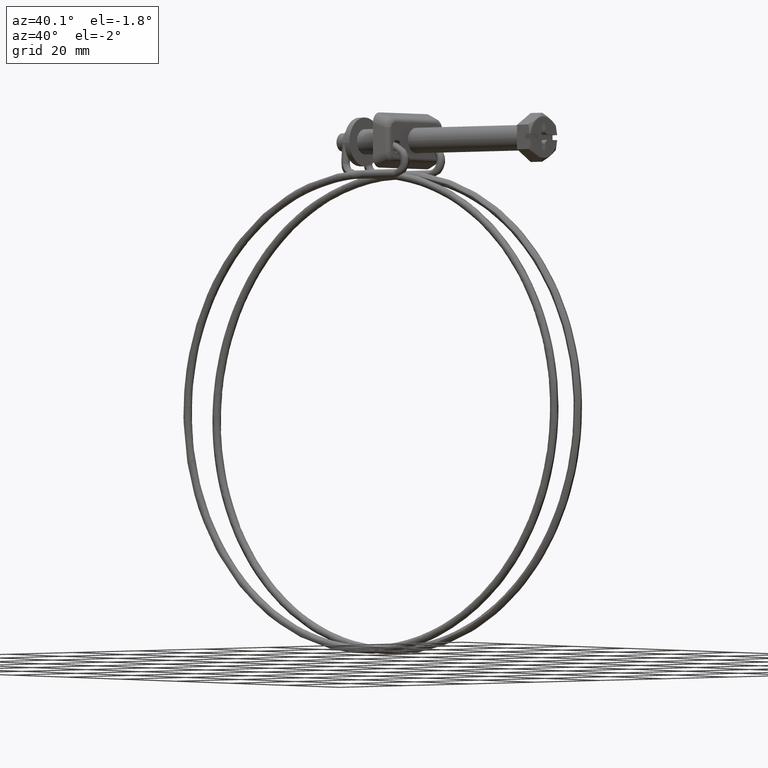
[diagram: clean part render]
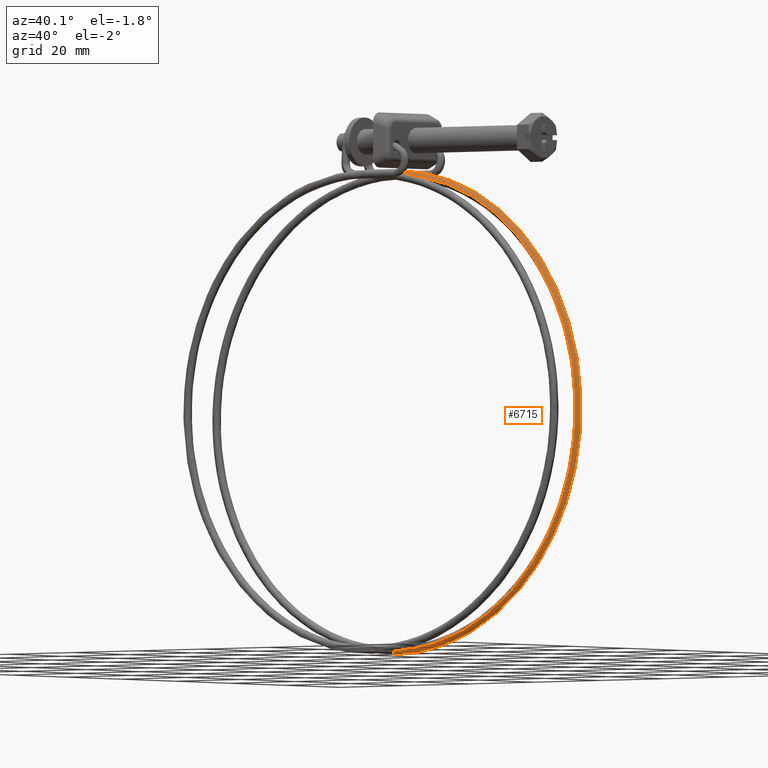
[diagram: same view with one face highlighted and labeled with its STEP entity id]
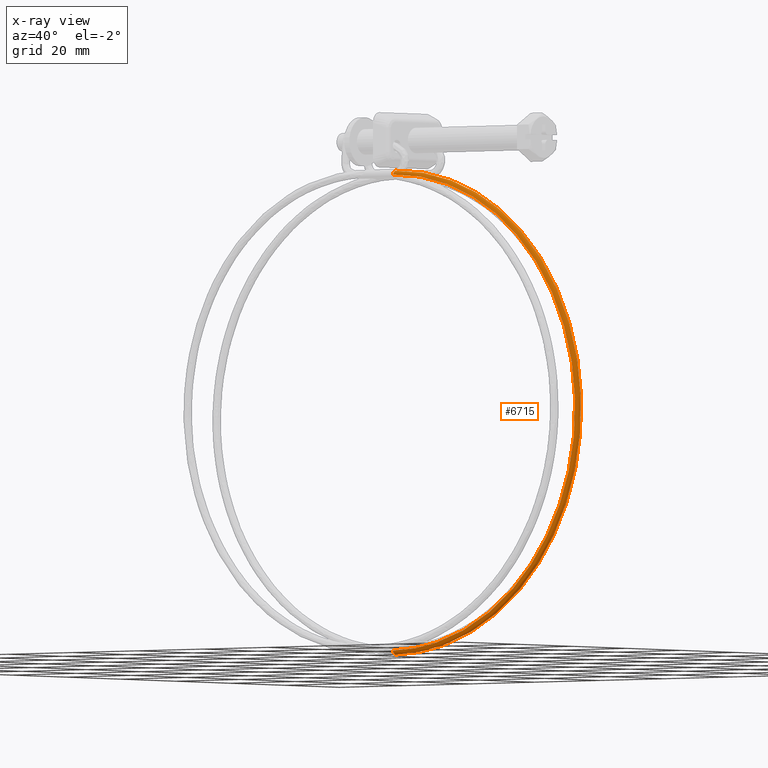
[diagram: x-ray of the same camera — body ghosted, the highlighted face saturated]
A machine part, auxiliary view. The second image highlights one B-rep face of the part: STEP entity #6715.
The next image is the same camera in x-ray: the body ghosted, the highlighted face saturated — about 0% of this face is hidden behind the body in this view.
In plain terms, the highlighted face is a freeform B-spline surface patch.
Its self-contained STEP definition (entity closure, byte-faithful):
#4757=CARTESIAN_POINT('',(-45.149995047848009,4.312567983723296,-6.850080010482468));
#4758=VERTEX_POINT('',#4757);
#4869=CARTESIAN_POINT('',(-45.149999999999487,3.302437946023353,-7.780267861726598));
#4870=VERTEX_POINT('',#4869);
#4894=CARTESIAN_POINT('',(-45.149999999999487,3.302437946023353,-7.780267861726598));
#4895=CARTESIAN_POINT('',(-45.149999887981103,3.305665785399472,-7.738186012179924));
#4896=CARTESIAN_POINT('',(-45.149999769360569,3.311570233933336,-7.696290172831220));
#4897=CARTESIAN_POINT('',(-45.149999452208732,3.333373918543057,-7.590727070602215));
#4898=CARTESIAN_POINT('',(-45.149999245691802,3.352988562713096,-7.527797280406175));
#4899=CARTESIAN_POINT('',(-45.149998813237673,3.404179191938013,-7.406868642005023));
#4900=CARTESIAN_POINT('',(-45.149998587311138,3.435753911203701,-7.348872783998793));
#4901=CARTESIAN_POINT('',(-45.149998124719282,3.509651853348891,-7.240041057395966));
#4902=CARTESIAN_POINT('',(-45.149997888065393,3.551973248956153,-7.189207879878272));
#4903=CARTESIAN_POINT('',(-45.149997413113027,3.645738647547429,-7.096655407293596));
#4904=CARTESIAN_POINT('',(-45.149997174826282,3.697180331997190,-7.054938400768875));
#4905=CARTESIAN_POINT('',(-45.149996705765503,3.807209835350924,-6.982221921819744));
#4906=CARTESIAN_POINT('',(-45.149996475003093,3.865794933558606,-6.951224247453576));
#4907=CARTESIAN_POINT('',(-45.149996029859672,3.987860169566173,-6.901138215646140));
#4908=CARTESIAN_POINT('',(-45.149995815489660,4.051337289062560,-6.882051096680708));
#4909=CARTESIAN_POINT('',(-45.149995411370199,4.180747359159162,-6.856520290128752));
#4910=CARTESIAN_POINT('',(-45.149995221630718,4.246677109840382,-6.850077233841728));
#4911=CARTESIAN_POINT('',(-45.149995047848009,4.312567983723296,-6.850080010482468));
#4912=B_SPLINE_CURVE_WITH_KNOTS('',3,(#4894,#4895,#4896,#4897,#4898,#4899,#4900,#4901,#4902,#4903,#4904,#4905,#4906,#4907,#4908,#4909,#4910,#4911),.UNSPECIFIED.,.F.,.U.,(4,2,2,2,2,2,2,2,4),(0.761107417883291,0.781249999999999,0.812499999999999,0.843749999999999,0.874999999999999,0.906249999999999,0.937500000000000,0.968750000000000,1.0),.UNSPECIFIED.);
#4913=EDGE_CURVE('',#4870,#4758,#4912,.T.);
#6636=CARTESIAN_POINT('',(-53.043581710672584,3.299495142745857,-8.381182157564419));
#6637=CARTESIAN_POINT('',(11.694937367910224,3.299495142745854,0.831539527141473));
#6638=CARTESIAN_POINT('',(10.873234604270177,3.299495142745857,-64.554046788927522));
#6639=CARTESIAN_POINT('',(10.070984297930464,3.299495142745855,-128.391737220800820));
#6640=CARTESIAN_POINT('',(-53.122151795939374,3.299495142745855,-119.307582012342210));
#6641=CARTESIAN_POINT('',(-53.046521611377898,3.300953821435807,-8.360523244334013));
#6642=CARTESIAN_POINT('',(11.716108805362451,3.300953821435805,0.855629644098081));
#6643=CARTESIAN_POINT('',(10.894100005169802,3.300953821435807,-64.554309005090872));
#6644=CARTESIAN_POINT('',(10.091550907187987,3.300953821435806,-128.415775268773560));
#6645=CARTESIAN_POINT('',(-53.125120959437879,3.300953821435806,-119.328236740133650));
#6646=CARTESIAN_POINT('',(-53.182232994128832,3.368289191519732,-7.406868695538988));
#6647=CARTESIAN_POINT('',(12.693422442612695,3.368289191519732,1.967675053285465));
#6648=CARTESIAN_POINT('',(11.857286415724836,3.368289191519732,-64.566413399653101));
#6649=CARTESIAN_POINT('',(11.040944529833002,3.368289191519730,-129.525417075081660));
#6650=CARTESIAN_POINT('',(-53.262183168126292,3.368289191519732,-120.281698081140800));
#6651=CARTESIAN_POINT('',(-53.180554961334252,4.316044185382910,-7.418660363821662));
#6652=CARTESIAN_POINT('',(12.681338236404953,4.316044185382910,1.953924926893297));
#6653=CARTESIAN_POINT('',(11.845376888672304,4.316044185382912,-64.566263732244082));
#6654=CARTESIAN_POINT('',(11.029205546694856,4.316044185382909,-129.511696668558020));
#6655=CARTESIAN_POINT('',(-53.260488432751750,4.316044185382910,-120.269908801817710));
#6656=CARTESIAN_POINT('',(-53.180548824398784,4.319510334118348,-7.418703488549436));
#6657=CARTESIAN_POINT('',(12.681294041801561,4.319510334118347,1.953874639652908));
#6658=CARTESIAN_POINT('',(11.845333332909043,4.319510334118346,-64.566263184877371));
#6659=CARTESIAN_POINT('',(11.029162614648257,4.319510334118347,-129.511646490009750));
#6660=CARTESIAN_POINT('',(-53.260482234731256,4.319510334118347,-120.269865685826840));
#6668=(BOUNDED_SURFACE()B_SPLINE_SURFACE(2,2,((#6636,#6641,#6646,#6651,#6656),(#6637,#6642,#6647,#6652,#6657),(#6638,#6643,#6648,#6653,#6658),(#6639,#6644,#6649,#6654,#6659),(#6640,#6645,#6650,#6655,#6660)),.UNSPECIFIED.,.F.,.F.,.U.)B_SPLINE_SURFACE_WITH_KNOTS((3,2,3),(3,1,1,3),(0.0,104.891057308371600,208.156251984471510),(0.0,0.049078224241627,1.639221746939750,1.647377013545374),.UNSPECIFIED.)GEOMETRIC_REPRESENTATION_ITEM()RATIONAL_B_SPLINE_SURFACE(((0.989455079387964,0.981503369502551,0.715914791860636,0.997391102117173,0.998827325662277),(0.645092097104134,0.639907844365023,0.466752846137206,0.650266122334485,0.651202492744746),(0.993473801550704,0.985489795390893,0.718822516223892,1.001442056840128,1.002884113680257),(0.650492183723164,0.645264533438227,0.470660049170904,0.655709520884537,0.656653729681512),(0.978945932866297,0.971078679249819,0.708310956576526,0.986797665942143,0.988218635147775)))REPRESENTATION_ITEM('')SURFACE());
#6669=ORIENTED_EDGE('',*,*,#4913,.F.);
#6670=CARTESIAN_POINT('',(-45.150000000000112,3.302485887032507,-119.919730657955500));
#6671=VERTEX_POINT('',#6670);
#6672=CARTESIAN_POINT('',(-45.149999999999494,3.302437946023353,-7.780267861726598));
#6673=CARTESIAN_POINT('',(11.628790770495300,3.302437946023353,-7.780267861727099));
#6674=CARTESIAN_POINT('',(10.915306221144730,3.302462217742246,-64.554573740838634));
#6675=CARTESIAN_POINT('',(10.219530492651558,3.302485887032508,-119.919730657955600));
#6676=CARTESIAN_POINT('',(-45.150000000000105,3.302485887032507,-119.919730657955510));
#6684=(BOUNDED_CURVE()B_SPLINE_CURVE(2,(#6672,#6673,#6674,#6675,#6676),.UNSPECIFIED.,.F.,.U.)B_SPLINE_CURVE_WITH_KNOTS((3,2,3),(-3.809259143780007,-2.0,-0.221563029385458),.UNSPECIFIED.)CURVE()GEOMETRIC_REPRESENTATION_ITEM()RATIONAL_B_SPLINE_CURVE((0.918015672707587,0.665615997705816,0.977505800795127,0.670929289365781,0.909579780184416))REPRESENTATION_ITEM(''));
#6685=EDGE_CURVE('',#4870,#6671,#6684,.T.);
#6686=ORIENTED_EDGE('',*,*,#6685,.T.);
#6687=CARTESIAN_POINT('',(-45.149999997946651,4.306285019938812,-120.849961522101910));
#6688=VERTEX_POINT('',#6687);
#6689=CARTESIAN_POINT('',(-45.150000000000112,3.302485887032507,-119.919730657955500));
#6690=CARTESIAN_POINT('',(-45.149999999737013,3.320535383565215,-120.157462601634090));
#6691=CARTESIAN_POINT('',(-45.149999999384818,3.426078744590592,-120.388434106584700));
#6692=CARTESIAN_POINT('',(-45.149999998632033,3.782184756065111,-120.742202801552590));
#6693=CARTESIAN_POINT('',(-45.149999998234897,4.043596731422727,-120.849967568025600));
#6694=CARTESIAN_POINT('',(-45.149999997946651,4.306285019938812,-120.849961522101910));
#6695=B_SPLINE_CURVE_WITH_KNOTS('',3,(#6689,#6690,#6691,#6692,#6693,#6694),.UNSPECIFIED.,.F.,.U.,(4,2,4),(0.761111541812609,0.875000000000000,1.0),.UNSPECIFIED.);
#6696=EDGE_CURVE('',#6671,#6688,#6695,.T.);
#6697=ORIENTED_EDGE('',*,*,#6696,.T.);
#6698=CARTESIAN_POINT('',(-45.149995047848009,4.312567983723296,-6.850080010482468));
#6699=CARTESIAN_POINT('',(12.570741649490571,4.312567983585049,-6.850085025259781));
#6700=CARTESIAN_POINT('',(11.845420570055330,4.309387025980702,-64.566284295177468));
#6701=CARTESIAN_POINT('',(11.138102034951716,4.306285020073630,-120.849961520073340));
#6702=CARTESIAN_POINT('',(-45.149999997946651,4.306285019938812,-120.849961522101910));
#6710=(BOUNDED_CURVE()B_SPLINE_CURVE(2,(#6698,#6699,#6700,#6701,#6702),.UNSPECIFIED.,.F.,.U.)B_SPLINE_CURVE_WITH_KNOTS((3,2,3),(-3.809259036736794,-2.0,-0.221563029429436),.UNSPECIFIED.)CURVE()GEOMETRIC_REPRESENTATION_ITEM()RATIONAL_B_SPLINE_CURVE((0.939140864529752,0.680933060056597,1.0,0.686368601421713,0.930510877206804))REPRESENTATION_ITEM(''));
#6711=EDGE_CURVE('',#4758,#6688,#6710,.T.);
#6712=ORIENTED_EDGE('',*,*,#6711,.F.);
#6713=EDGE_LOOP('',(#6669,#6686,#6697,#6712));
#6714=FACE_OUTER_BOUND('',#6713,.T.);
#6715=ADVANCED_FACE('',(#6714),#6668,.T.);